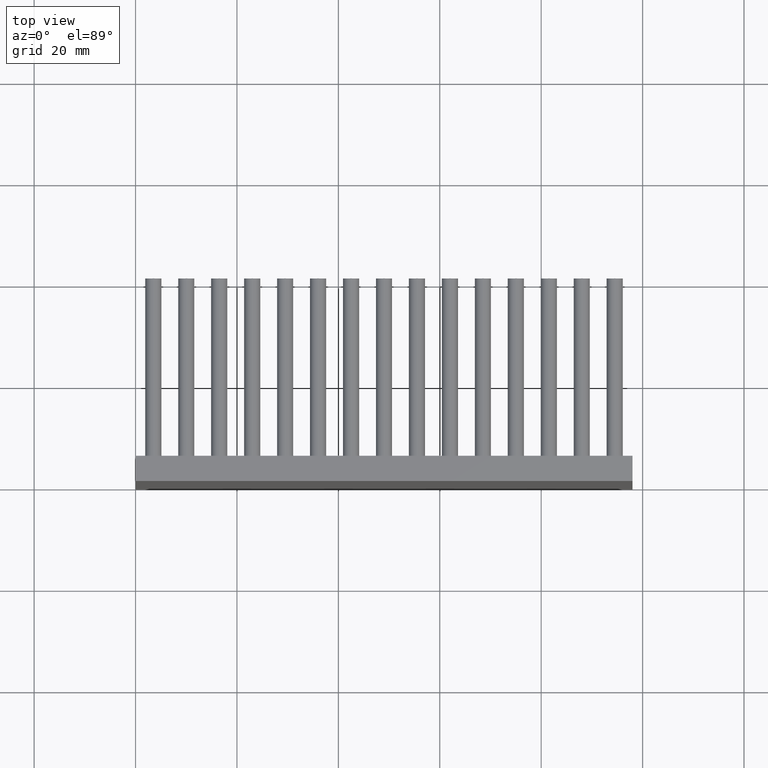
[diagram: clean part render]
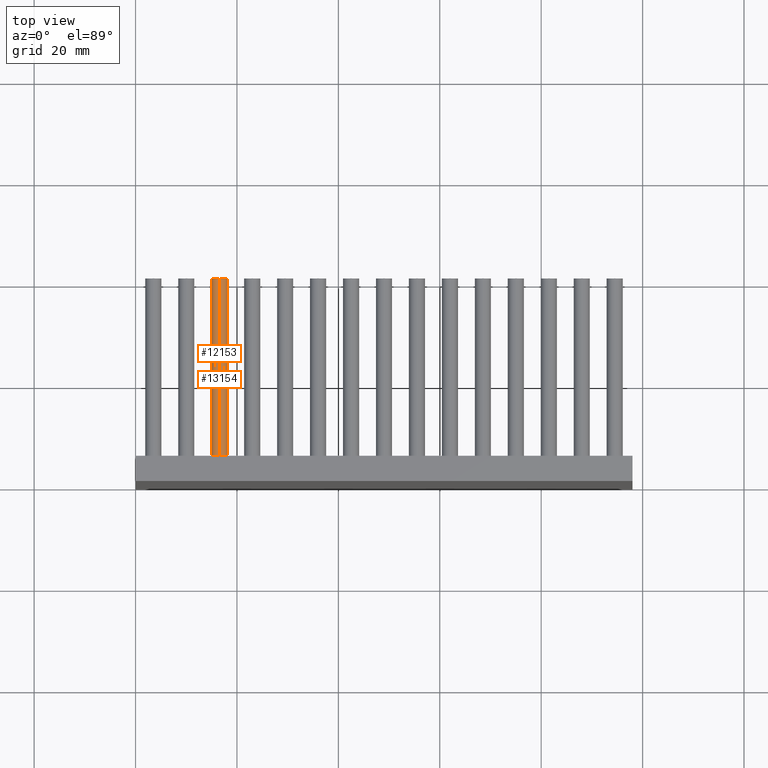
[diagram: same view with one multi-face feature highlighted, each face labeled with its STEP entity id]
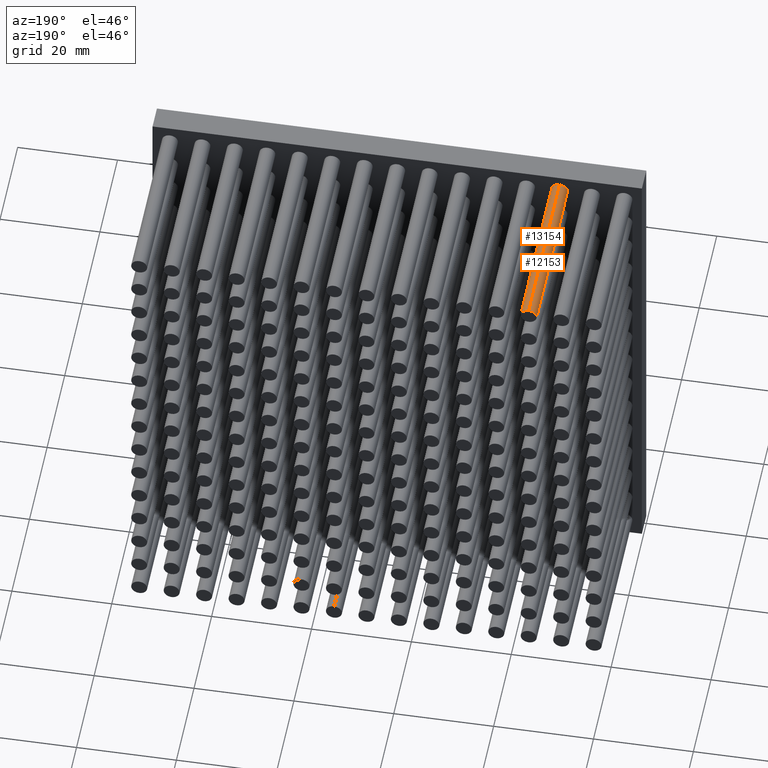
[diagram: same view with one multi-face feature highlighted, each face labeled with its STEP entity id]
A machine part, top view. The highlighted faces form ONE feature: a constant-radius fillet chain: 2 tangent blend faces with common blend radius 1.6 mm. The faces share edges in the B-rep.
A second angle (auxiliary view) of the same feature is appended — it is thin or edge-on in the first view.
Their STEP definitions:
[1] entity #13154 (Cylinder):
#340 = CIRCLE ( 'NONE', #5332, 1.600000000000004086 ) ;
#481 = VERTEX_POINT ( 'NONE', #13202 ) ;
#1050 = CARTESIAN_POINT ( 'NONE',  ( 16.50000000000000711, 40.00000000000000000, 96.09999999999999432 ) ) ;
#1267 = LINE ( 'NONE', #15614, #16659 ) ;
#1724 = EDGE_CURVE ( 'NONE', #12995, #3997, #1267, .T. ) ;
#2092 = AXIS2_PLACEMENT_3D ( 'NONE', #18151, #15118, #2770 ) ;
#2663 = DIRECTION ( 'NONE',  ( -0.0000000000000000000, -1.000000000000000000, -0.0000000000000000000 ) ) ;
#2770 = DIRECTION ( 'NONE',  ( 0.0000000000000000000, 0.0000000000000000000, 1.000000000000000000 ) ) ;
#3211 = EDGE_CURVE ( 'NONE', #481, #3997, #340, .T. ) ;
#3444 = CARTESIAN_POINT ( 'NONE',  ( 16.50000000000000711, 5.000000000000000000, 94.49999999999998579 ) ) ;
#3582 = ORIENTED_EDGE ( 'NONE', *, *, #13925, .T. ) ;
#3997 = VERTEX_POINT ( 'NONE', #13380 ) ;
#4123 = AXIS2_PLACEMENT_3D ( 'NONE', #11049, #2663, #16480 ) ;
#5332 = AXIS2_PLACEMENT_3D ( 'NONE', #3444, #9251, #6651 ) ;
#5988 = VERTEX_POINT ( 'NONE', #6551 ) ;
#6457 = VECTOR ( 'NONE', #17536, 1000.000000000000000 ) ;
#6551 = CARTESIAN_POINT ( 'NONE',  ( 16.50000000000000711, 40.00000000000000000, 96.09999999999999432 ) ) ;
#6651 = DIRECTION ( 'NONE',  ( 0.0000000000000000000, 0.0000000000000000000, 1.000000000000000000 ) ) ;
#6885 = FACE_OUTER_BOUND ( 'NONE', #14950, .T. ) ;
#7816 = CARTESIAN_POINT ( 'NONE',  ( 16.50000000000000711, 40.00000000000000000, 92.89999999999997726 ) ) ;
#9055 = LINE ( 'NONE', #1050, #6457 ) ;
#9251 = DIRECTION ( 'NONE',  ( 0.0000000000000000000, 1.000000000000000000, 0.0000000000000000000 ) ) ;
#9724 = DIRECTION ( 'NONE',  ( -0.0000000000000000000, -1.000000000000000000, -0.0000000000000000000 ) ) ;
#9758 = CYLINDRICAL_SURFACE ( 'NONE', #4123, 1.600000000000004086 ) ;
#10908 = CIRCLE ( 'NONE', #2092, 1.600000000000004086 ) ;
#11049 = CARTESIAN_POINT ( 'NONE',  ( 16.50000000000000711, 40.00000000000000000, 94.49999999999998579 ) ) ;
#12995 = VERTEX_POINT ( 'NONE', #7816 ) ;
#13154 = ADVANCED_FACE ( 'NONE', ( #6885 ), #9758, .T. ) ;
#13202 = CARTESIAN_POINT ( 'NONE',  ( 16.50000000000000711, 5.000000000000000000, 96.09999999999999432 ) ) ;
#13380 = CARTESIAN_POINT ( 'NONE',  ( 16.50000000000000711, 5.000000000000000000, 92.89999999999997726 ) ) ;
#13829 = ORIENTED_EDGE ( 'NONE', *, *, #1724, .F. ) ;
#13925 = EDGE_CURVE ( 'NONE', #5988, #481, #9055, .T. ) ;
#13951 = ORIENTED_EDGE ( 'NONE', *, *, #3211, .T. ) ;
#14381 = EDGE_CURVE ( 'NONE', #5988, #12995, #10908, .T. ) ;
#14950 = EDGE_LOOP ( 'NONE', ( #17529, #3582, #13951, #13829 ) ) ;
#15118 = DIRECTION ( 'NONE',  ( 0.0000000000000000000, 1.000000000000000000, 0.0000000000000000000 ) ) ;
#15614 = CARTESIAN_POINT ( 'NONE',  ( 16.50000000000000711, 40.00000000000000000, 92.89999999999997726 ) ) ;
#16480 = DIRECTION ( 'NONE',  ( 0.0000000000000000000, 0.0000000000000000000, -1.000000000000000000 ) ) ;
#16659 = VECTOR ( 'NONE', #9724, 1000.000000000000000 ) ;
#17529 = ORIENTED_EDGE ( 'NONE', *, *, #14381, .F. ) ;
#17536 = DIRECTION ( 'NONE',  ( -0.0000000000000000000, -1.000000000000000000, -0.0000000000000000000 ) ) ;
#18151 = CARTESIAN_POINT ( 'NONE',  ( 16.50000000000000711, 40.00000000000000000, 94.49999999999998579 ) ) ;
[2] entity #12153 (Cylinder):
#481 = VERTEX_POINT ( 'NONE', #13202 ) ;
#511 = DIRECTION ( 'NONE',  ( 0.0000000000000000000, 1.000000000000000000, 0.0000000000000000000 ) ) ;
#580 = ORIENTED_EDGE ( 'NONE', *, *, #13925, .F. ) ;
#1050 = CARTESIAN_POINT ( 'NONE',  ( 16.50000000000000711, 40.00000000000000000, 96.09999999999999432 ) ) ;
#1267 = LINE ( 'NONE', #15614, #16659 ) ;
#1724 = EDGE_CURVE ( 'NONE', #12995, #3997, #1267, .T. ) ;
#2083 = DIRECTION ( 'NONE',  ( -0.0000000000000000000, -1.000000000000000000, -0.0000000000000000000 ) ) ;
#2453 = CARTESIAN_POINT ( 'NONE',  ( 16.50000000000000711, 40.00000000000000000, 94.49999999999998579 ) ) ;
#2995 = AXIS2_PLACEMENT_3D ( 'NONE', #3267, #511, #15990 ) ;
#3036 = DIRECTION ( 'NONE',  ( 0.0000000000000000000, 0.0000000000000000000, 1.000000000000000000 ) ) ;
#3254 = EDGE_LOOP ( 'NONE', ( #580, #8095, #17327, #12969 ) ) ;
#3267 = CARTESIAN_POINT ( 'NONE',  ( 16.50000000000000711, 5.000000000000000000, 94.49999999999998579 ) ) ;
#3929 = CIRCLE ( 'NONE', #13064, 1.600000000000004086 ) ;
#3997 = VERTEX_POINT ( 'NONE', #13380 ) ;
#4699 = EDGE_CURVE ( 'NONE', #3997, #481, #8594, .T. ) ;
#5869 = DIRECTION ( 'NONE',  ( 0.0000000000000000000, 1.000000000000000000, 0.0000000000000000000 ) ) ;
#5980 = AXIS2_PLACEMENT_3D ( 'NONE', #2453, #2083, #16269 ) ;
#5988 = VERTEX_POINT ( 'NONE', #6551 ) ;
#6457 = VECTOR ( 'NONE', #17536, 1000.000000000000000 ) ;
#6551 = CARTESIAN_POINT ( 'NONE',  ( 16.50000000000000711, 40.00000000000000000, 96.09999999999999432 ) ) ;
#7011 = EDGE_CURVE ( 'NONE', #12995, #5988, #3929, .T. ) ;
#7816 = CARTESIAN_POINT ( 'NONE',  ( 16.50000000000000711, 40.00000000000000000, 92.89999999999997726 ) ) ;
#8095 = ORIENTED_EDGE ( 'NONE', *, *, #7011, .F. ) ;
#8594 = CIRCLE ( 'NONE', #2995, 1.600000000000004086 ) ;
#9055 = LINE ( 'NONE', #1050, #6457 ) ;
#9724 = DIRECTION ( 'NONE',  ( -0.0000000000000000000, -1.000000000000000000, -0.0000000000000000000 ) ) ;
#12153 = ADVANCED_FACE ( 'NONE', ( #16359 ), #12299, .T. ) ;
#12299 = CYLINDRICAL_SURFACE ( 'NONE', #5980, 1.600000000000004086 ) ;
#12969 = ORIENTED_EDGE ( 'NONE', *, *, #4699, .T. ) ;
#12995 = VERTEX_POINT ( 'NONE', #7816 ) ;
#13064 = AXIS2_PLACEMENT_3D ( 'NONE', #15654, #5869, #3036 ) ;
#13202 = CARTESIAN_POINT ( 'NONE',  ( 16.50000000000000711, 5.000000000000000000, 96.09999999999999432 ) ) ;
#13380 = CARTESIAN_POINT ( 'NONE',  ( 16.50000000000000711, 5.000000000000000000, 92.89999999999997726 ) ) ;
#13925 = EDGE_CURVE ( 'NONE', #5988, #481, #9055, .T. ) ;
#15614 = CARTESIAN_POINT ( 'NONE',  ( 16.50000000000000711, 40.00000000000000000, 92.89999999999997726 ) ) ;
#15654 = CARTESIAN_POINT ( 'NONE',  ( 16.50000000000000711, 40.00000000000000000, 94.49999999999998579 ) ) ;
#15990 = DIRECTION ( 'NONE',  ( 0.0000000000000000000, 0.0000000000000000000, 1.000000000000000000 ) ) ;
#16269 = DIRECTION ( 'NONE',  ( 0.0000000000000000000, 0.0000000000000000000, -1.000000000000000000 ) ) ;
#16359 = FACE_OUTER_BOUND ( 'NONE', #3254, .T. ) ;
#16659 = VECTOR ( 'NONE', #9724, 1000.000000000000000 ) ;
#17327 = ORIENTED_EDGE ( 'NONE', *, *, #1724, .T. ) ;
#17536 = DIRECTION ( 'NONE',  ( -0.0000000000000000000, -1.000000000000000000, -0.0000000000000000000 ) ) ;